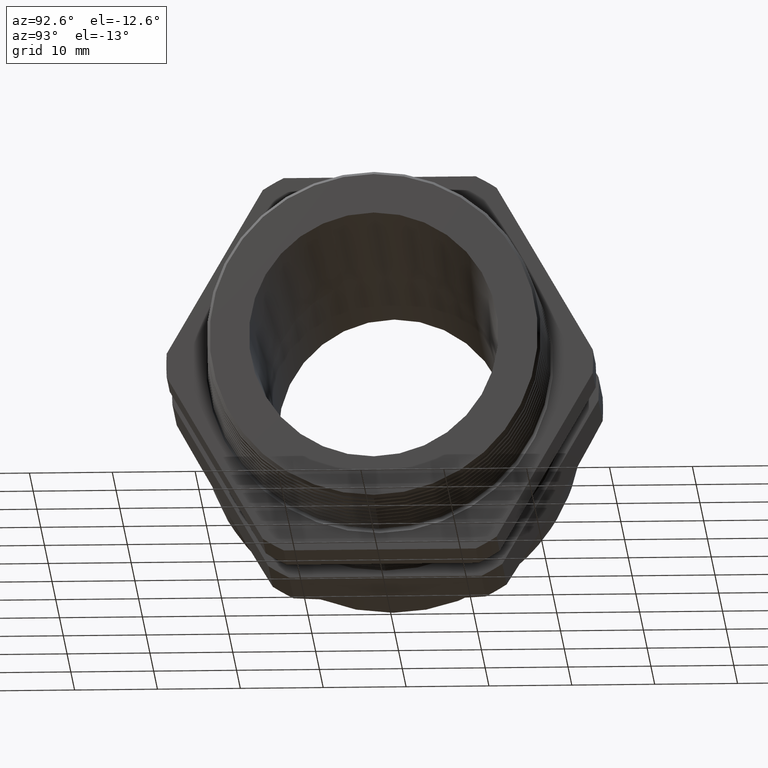
[diagram: clean part render]
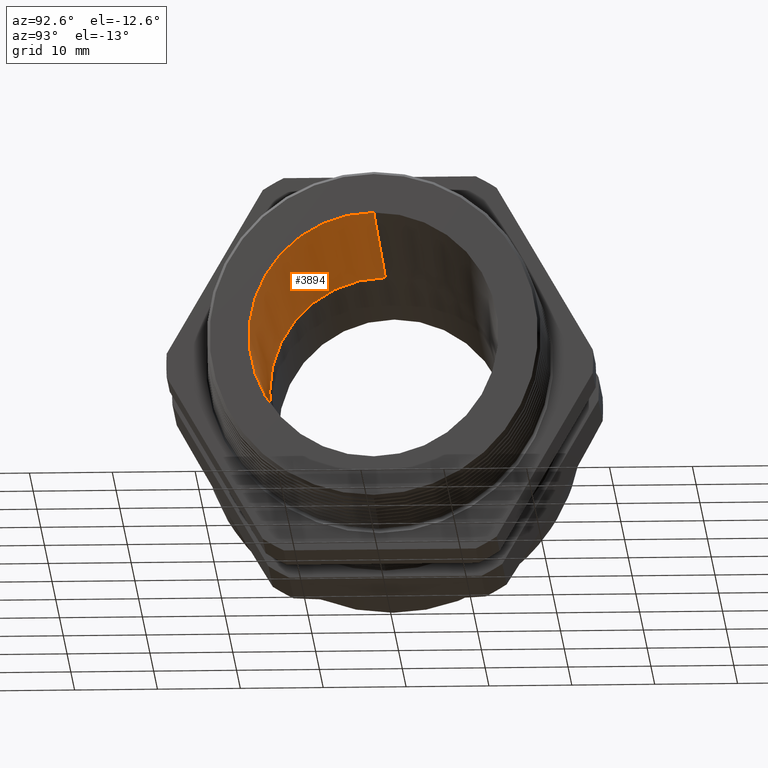
[diagram: same view with one face highlighted and labeled with its STEP entity id]
A machine part, auxiliary view. The second image highlights one B-rep face of the part: STEP entity #3894.
In plain terms, the highlighted conical surface has half-angle 2 deg.
Its self-contained STEP definition (entity closure, byte-faithful):
#2929 = CARTESIAN_POINT ( 'NONE',  ( -0.5962500000000000600, 6.997764032927803500E-017, 0.5500000000000000400 ) ) ;
#2930 = CARTESIAN_POINT ( 'NONE',  ( -0.5962500000000000600, 0.0000000000000000000, -0.5500000000000000400 ) ) ;
#2931 = DIRECTION ( 'NONE',  ( 0.0000000000000000000, 0.0000000000000000000, 1.000000000000000000 ) ) ;
#2932 = DIRECTION ( 'NONE',  ( -1.000000000000000000, 0.0000000000000000000, 0.0000000000000000000 ) ) ;
#2933 = CARTESIAN_POINT ( 'NONE',  ( -0.5962500000000000600, 0.0000000000000000000, 0.0000000000000000000 ) ) ;
#2934 = AXIS2_PLACEMENT_3D ( 'NONE', #2933, #2932, #2931 ) ;
#2935 = CIRCLE ( 'NONE', #2934, 0.5500000000000000400 ) ;
#3033 = DIRECTION ( 'NONE',  ( 0.0000000000000000000, 0.0000000000000000000, -1.000000000000000000 ) ) ;
#3034 = DIRECTION ( 'NONE',  ( 1.000000000000000000, 0.0000000000000000000, 0.0000000000000000000 ) ) ;
#3035 = CARTESIAN_POINT ( 'NONE',  ( -0.5962500000000000600, 0.0000000000000000000, 0.0000000000000000000 ) ) ;
#3036 = AXIS2_PLACEMENT_3D ( 'NONE', #3035, #3034, #3033 ) ;
#3037 = CONICAL_SURFACE ( 'NONE', #3036, 0.5500000000000000400, 0.03490658503988732600 ) ;
#3038 = FACE_OUTER_BOUND ( 'NONE', #3890, .T. ) ;
#3111 = DIRECTION ( 'NONE',  ( 0.9993908270190957600, 0.0000000000000000000, -0.03489949670250170500 ) ) ;
#3112 = VECTOR ( 'NONE', #3111, 39.37007874015748900 ) ;
#3113 = CARTESIAN_POINT ( 'NONE',  ( -0.5962500000000000600, 0.0000000000000000000, -0.5500000000000000400 ) ) ;
#3114 = LINE ( 'NONE', #3113, #3112 ) ;
#3115 = DIRECTION ( 'NONE',  ( 0.9993908270190957600, 4.273955692857231900E-018, 0.03489949670250170500 ) ) ;
#3116 = VECTOR ( 'NONE', #3115, 39.37007874015748900 ) ;
#3117 = CARTESIAN_POINT ( 'NONE',  ( -0.5962500000000000600, 6.735557395310443700E-017, 0.5500000000000000400 ) ) ;
#3118 = LINE ( 'NONE', #3117, #3116 ) ;
#3130 = CARTESIAN_POINT ( 'NONE',  ( 0.6299999999999997800, 7.259970670545161900E-017, 0.5928215935892566800 ) ) ;
#3131 = DIRECTION ( 'NONE',  ( 0.0000000000000000000, 0.0000000000000000000, 1.000000000000000000 ) ) ;
#3132 = DIRECTION ( 'NONE',  ( -1.000000000000000000, 0.0000000000000000000, 0.0000000000000000000 ) ) ;
#3133 = AXIS2_PLACEMENT_3D ( 'NONE', #3139, #3132, #3131 ) ;
#3134 = CIRCLE ( 'NONE', #3133, 0.5928215935892566800 ) ;
#3139 = CARTESIAN_POINT ( 'NONE',  ( 0.6299999999999997800, 0.0000000000000000000, 0.0000000000000000000 ) ) ;
#3186 = CARTESIAN_POINT ( 'NONE',  ( 0.6299999999999997800, 0.0000000000000000000, -0.5928215935892566800 ) ) ;
#3847 = EDGE_CURVE ( 'NONE', #3848, #3850, #2935, .T. ) ;
#3848 = VERTEX_POINT ( 'NONE', #2930 ) ;
#3850 = VERTEX_POINT ( 'NONE', #2929 ) ;
#3890 = EDGE_LOOP ( 'NONE', ( #3956, #3918, #3993, #3915 ) ) ;
#3894 = ADVANCED_FACE ( 'NONE', ( #3038 ), #3037, .F. ) ;
#3915 = ORIENTED_EDGE ( 'NONE', *, *, #3926, .F. ) ;
#3918 = ORIENTED_EDGE ( 'NONE', *, *, #3923, .T. ) ;
#3923 = EDGE_CURVE ( 'NONE', #3850, #3952, #3118, .T. ) ;
#3926 = EDGE_CURVE ( 'NONE', #3848, #3995, #3114, .T. ) ;
#3951 = EDGE_CURVE ( 'NONE', #3995, #3952, #3134, .T. ) ;
#3952 = VERTEX_POINT ( 'NONE', #3130 ) ;
#3956 = ORIENTED_EDGE ( 'NONE', *, *, #3847, .T. ) ;
#3993 = ORIENTED_EDGE ( 'NONE', *, *, #3951, .F. ) ;
#3995 = VERTEX_POINT ( 'NONE', #3186 ) ;